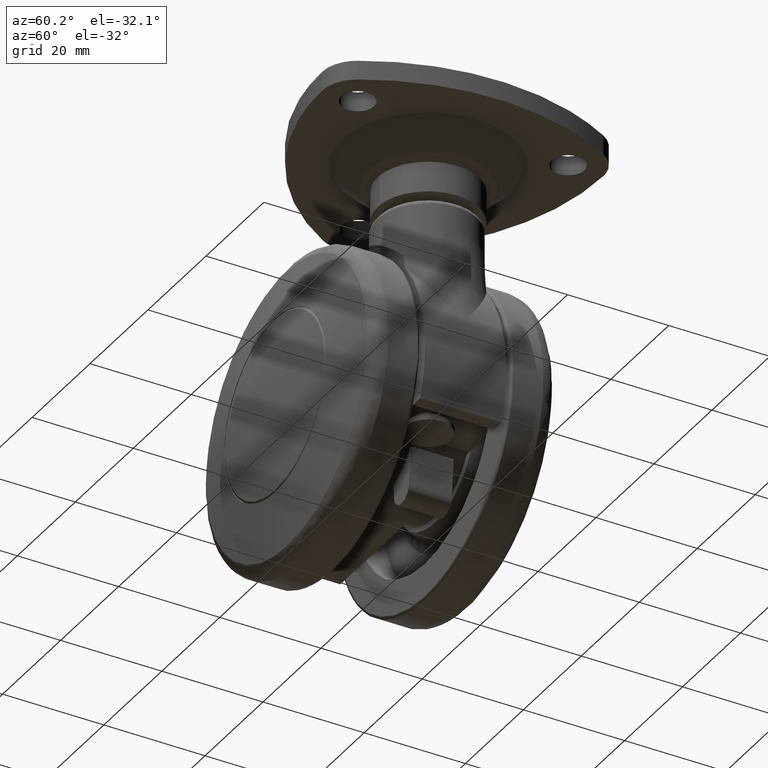
[diagram: clean part render]
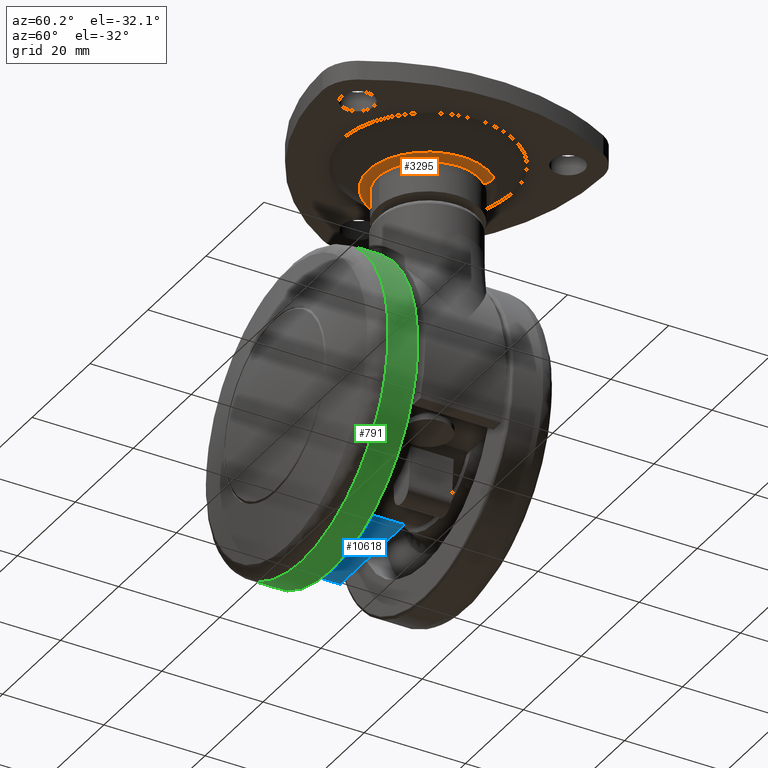
[diagram: same view with three faces highlighted in distinct colors, each labeled with its STEP entity id]
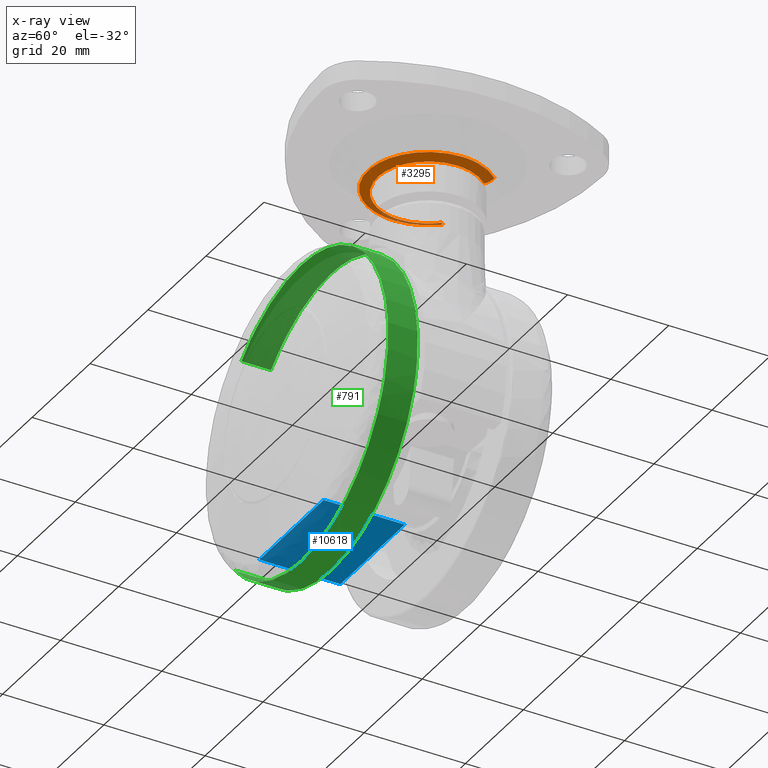
[diagram: x-ray of the same camera — body ghosted, the three highlighted faces saturated]
A machine part, auxiliary view with three faces highlighted in distinct colors.
The next image is the same camera in x-ray (body ghosted, the three faces saturated) — at least one of them is partly hidden behind the body in this view.
Their STEP definitions:

[orange] entity #3295 — the highlighted face is a freeform B-spline surface patch.
#2114=CARTESIAN_POINT('',(7.638564212240541,-3.516179743934661,40.204649041664908));
#2115=VERTEX_POINT('',#2114);
#2116=CARTESIAN_POINT('',(7.000000000000001,0.0,40.204649041664901));
#2117=VERTEX_POINT('',#2116);
#2118=CARTESIAN_POINT('',(7.638564212240541,-3.516179743934661,40.204649041664908));
#2119=CARTESIAN_POINT('',(7.000000000000001,-1.816073860688505,40.204649041664901));
#2120=CARTESIAN_POINT('',(7.000000000000001,0.0,40.204649041664901));
#2128=(BOUNDED_CURVE()B_SPLINE_CURVE(2,(#2118,#2119,#2120),.UNSPECIFIED.,.F.,.U.)B_SPLINE_CURVE_WITH_KNOTS((3,3),(0.940284170898270,1.0),.UNSPECIFIED.)CURVE()GEOMETRIC_REPRESENTATION_ITEM()RATIONAL_B_SPLINE_CURVE((0.893499554634984,0.930038554401121,1.0))REPRESENTATION_ITEM(''));
#2129=EDGE_CURVE('',#2115,#2117,#2128,.T.);
#2131=CARTESIAN_POINT('',(9.710313724783337,6.845471060255671,40.204649041742599));
#2132=VERTEX_POINT('',#2131);
#2133=CARTESIAN_POINT('',(7.000000000000001,0.0,40.204649041664901));
#2134=CARTESIAN_POINT('',(7.000000000000001,3.959280088000262,40.204649041664901));
#2135=CARTESIAN_POINT('',(9.710313724783337,6.845471060255671,40.204649041742599));
#2143=(BOUNDED_CURVE()B_SPLINE_CURVE(2,(#2133,#2134,#2135),.UNSPECIFIED.,.F.,.U.)B_SPLINE_CURVE_WITH_KNOTS((3,3),(0.0,0.120259312843455),.UNSPECIFIED.)CURVE()GEOMETRIC_REPRESENTATION_ITEM()RATIONAL_B_SPLINE_CURVE((1.0,0.859107451075946,0.853764031098849))REPRESENTATION_ITEM(''));
#2144=EDGE_CURVE('',#2117,#2132,#2143,.T.);
#2146=CARTESIAN_POINT('',(24.251180156752088,6.886246173968763,40.204649041760142));
#2147=VERTEX_POINT('',#2146);
#2163=CARTESIAN_POINT('',(27.0,0.0,40.204649041664901));
#2164=VERTEX_POINT('',#2163);
#2165=CARTESIAN_POINT('',(24.251180156752092,6.886246173968763,40.204649041760142));
#2166=CARTESIAN_POINT('',(27.000000000000007,3.991753671769552,40.204649041664901));
#2167=CARTESIAN_POINT('',(27.0,0.0,40.204649041664901));
#2175=(BOUNDED_CURVE()B_SPLINE_CURVE(2,(#2165,#2166,#2167),.UNSPECIFIED.,.F.,.U.)B_SPLINE_CURVE_WITH_KNOTS((3,3),(0.378894281371294,0.500000000000000),.UNSPECIFIED.)CURVE()GEOMETRIC_REPRESENTATION_ITEM()RATIONAL_B_SPLINE_CURVE((0.853695529820330,0.858115825016488,1.0))REPRESENTATION_ITEM(''));
#2176=EDGE_CURVE('',#2147,#2164,#2175,.T.);
#2178=CARTESIAN_POINT('',(17.610485395423328,-9.981347984214096,40.204649041664887));
#2179=VERTEX_POINT('',#2178);
#2180=CARTESIAN_POINT('',(27.0,0.0,40.204649041664901));
#2181=CARTESIAN_POINT('',(27.0,-9.407060668915710,40.204649041664894));
#2182=CARTESIAN_POINT('',(17.610485395423332,-9.981347984214096,40.204649041664901));
#2190=(BOUNDED_CURVE()B_SPLINE_CURVE(2,(#2180,#2181,#2182),.UNSPECIFIED.,.F.,.U.)B_SPLINE_CURVE_WITH_KNOTS((3,3),(0.500000000000000,0.739332962239383),.UNSPECIFIED.)CURVE()GEOMETRIC_REPRESENTATION_ITEM()RATIONAL_B_SPLINE_CURVE((1.0,0.719603993286195,0.976072041667660))REPRESENTATION_ITEM(''));
#2191=EDGE_CURVE('',#2164,#2179,#2190,.T.);
#2269=CARTESIAN_POINT('',(17.610485395423328,-9.981347984214096,40.204649041664887));
#2270=CARTESIAN_POINT('',(17.305527633060869,-10.0,40.204649041664901));
#2271=CARTESIAN_POINT('',(17.0,-10.0,40.204649041664901));
#2272=CARTESIAN_POINT('',(10.073904043085779,-10.0,40.204649041664901));
#2273=CARTESIAN_POINT('',(7.638564212240541,-3.516179743934661,40.204649041664908));
#2281=(BOUNDED_CURVE()B_SPLINE_CURVE(2,(#2269,#2270,#2271,#2272,#2273),.UNSPECIFIED.,.F.,.U.)B_SPLINE_CURVE_WITH_KNOTS((3,2,3),(0.739332962239383,0.750000000000000,0.940284170898269),.UNSPECIFIED.)CURVE()GEOMETRIC_REPRESENTATION_ITEM()RATIONAL_B_SPLINE_CURVE((0.976072041667662,0.987502787900353,1.0,0.777068226785427,0.893499554634982))REPRESENTATION_ITEM(''));
#2282=EDGE_CURVE('',#2179,#2115,#2281,.T.);
#2318=CARTESIAN_POINT('',(17.930542371726641,-11.823661890641310,40.988538000001967));
#2319=VERTEX_POINT('',#2318);
#2320=CARTESIAN_POINT('',(5.971600621723943,-4.363404263093949,40.988538000008312));
#2321=VERTEX_POINT('',#2320);
#2322=CARTESIAN_POINT('',(17.930542371726641,-11.823661890641311,40.988538000001967));
#2323=CARTESIAN_POINT('',(17.465989430820773,-11.860223000000099,40.988537999999991));
#2324=CARTESIAN_POINT('',(17.0,-11.860223000000101,40.988537999999998));
#2325=CARTESIAN_POINT('',(8.937729224356495,-11.860223000000103,40.988538000000013));
#2326=CARTESIAN_POINT('',(5.971600621723943,-4.363404263093949,40.988538000008305));
#2334=(BOUNDED_CURVE()B_SPLINE_CURVE(2,(#2322,#2323,#2324,#2325,#2326),.UNSPECIFIED.,.F.,.U.)B_SPLINE_CURVE_WITH_KNOTS((3,2,3),(0.736331300632307,0.750000000000000,0.937532549936850),.UNSPECIFIED.)CURVE()GEOMETRIC_REPRESENTATION_ITEM()RATIONAL_B_SPLINE_CURVE((0.969723356170855,0.983986122580812,1.0,0.780291951266806,0.890203187498297))REPRESENTATION_ITEM(''));
#2335=EDGE_CURVE('',#2319,#2321,#2334,.T.);
#2395=CARTESIAN_POINT('',(5.139776999999901,0.0,40.988537999999998));
#2396=VERTEX_POINT('',#2395);
#2397=CARTESIAN_POINT('',(5.971600621723943,-4.363404263093949,40.988538000008312));
#2398=CARTESIAN_POINT('',(5.139776999999901,-2.260990056339502,40.988537999999998));
#2399=CARTESIAN_POINT('',(5.139776999999901,0.0,40.988537999999998));
#2407=(BOUNDED_CURVE()B_SPLINE_CURVE(2,(#2397,#2398,#2399),.UNSPECIFIED.,.F.,.U.)B_SPLINE_CURVE_WITH_KNOTS((3,3),(0.937532549936850,1.0),.UNSPECIFIED.)CURVE()GEOMETRIC_REPRESENTATION_ITEM()RATIONAL_B_SPLINE_CURVE((0.890203187498297,0.926814829919741,1.0))REPRESENTATION_ITEM(''));
#2408=EDGE_CURVE('',#2321,#2396,#2407,.T.);
#2457=CARTESIAN_POINT('',(28.860223000000101,0.0,40.988537999999998));
#2458=VERTEX_POINT('',#2457);
#2459=CARTESIAN_POINT('',(28.860223000000101,0.0,40.988537999999998));
#2460=CARTESIAN_POINT('',(28.860223000000101,-10.963477370116529,40.988537999999998));
#2461=CARTESIAN_POINT('',(17.930542371726641,-11.823661890641308,40.988538000001967));
#2469=(BOUNDED_CURVE()B_SPLINE_CURVE(2,(#2459,#2460,#2461),.UNSPECIFIED.,.F.,.U.)B_SPLINE_CURVE_WITH_KNOTS((3,3),(0.500000000000000,0.736331300632306),.UNSPECIFIED.)CURVE()GEOMETRIC_REPRESENTATION_ITEM()RATIONAL_B_SPLINE_CURVE((1.0,0.723120658605736,0.969723356170854))REPRESENTATION_ITEM(''));
#2470=EDGE_CURVE('',#2458,#2319,#2469,.T.);
#2472=CARTESIAN_POINT('',(25.600061422658150,8.167241578233764,40.988537914071522));
#2473=VERTEX_POINT('',#2472);
#2474=CARTESIAN_POINT('',(25.600061422658143,8.167241578233764,40.988537914071522));
#2475=CARTESIAN_POINT('',(28.860223000000101,4.734308870803965,40.988537999999998));
#2476=CARTESIAN_POINT('',(28.860223000000101,0.0,40.988537999999998));
#2484=(BOUNDED_CURVE()B_SPLINE_CURVE(2,(#2474,#2475,#2476),.UNSPECIFIED.,.F.,.U.)B_SPLINE_CURVE_WITH_KNOTS((3,3),(0.378894281371769,0.500000000000000),.UNSPECIFIED.)CURVE()GEOMETRIC_REPRESENTATION_ITEM()RATIONAL_B_SPLINE_CURVE((0.853695529820365,0.858115825017045,1.0))REPRESENTATION_ITEM(''));
#2485=EDGE_CURVE('',#2473,#2458,#2484,.T.);
#2487=CARTESIAN_POINT('',(8.354269461824810,8.118881383818440,40.988537913782672));
#2488=VERTEX_POINT('',#2487);
#2504=CARTESIAN_POINT('',(5.139776999999901,0.0,40.988537999999998));
#2505=CARTESIAN_POINT('',(5.139776999999901,4.695794476301169,40.988537999999998));
#2506=CARTESIAN_POINT('',(8.354269461824810,8.118881383818440,40.988537913782672));
#2514=(BOUNDED_CURVE()B_SPLINE_CURVE(2,(#2504,#2505,#2506),.UNSPECIFIED.,.F.,.U.)B_SPLINE_CURVE_WITH_KNOTS((3,3),(0.0,0.120259312843166),.UNSPECIFIED.)CURVE()GEOMETRIC_REPRESENTATION_ITEM()RATIONAL_B_SPLINE_CURVE((1.0,0.859107451076285,0.853764031098874))REPRESENTATION_ITEM(''));
#2515=EDGE_CURVE('',#2396,#2488,#2514,.T.);
#3228=CARTESIAN_POINT('',(25.652992419052946,8.217508688341217,41.057738575799434));
#3229=CARTESIAN_POINT('',(33.413225016302476,0.046025531973226,41.057738575799441));
#3230=CARTESIAN_POINT('',(25.698942615564121,-8.168850850534211,41.057738575799448));
#3231=CARTESIAN_POINT('',(17.530091765029919,-16.867793466098338,41.057738575799441));
#3232=CARTESIAN_POINT('',(8.831149149465789,-8.698942615564125,41.057738575799448));
#3233=CARTESIAN_POINT('',(0.132206533901666,-0.530091765029907,41.057738575799441));
#3234=CARTESIAN_POINT('',(8.301057384435872,8.168850850534206,41.057738575799448));
#3235=CARTESIAN_POINT('',(25.038584957605263,7.634022836497539,40.227066013923313));
#3236=CARTESIAN_POINT('',(32.247800683532795,0.042757479848370,40.227066013923320));
#3237=CARTESIAN_POINT('',(25.081272451201180,-7.588819958218837,40.227066013923313));
#3238=CARTESIAN_POINT('',(17.492452492982345,-15.670092409420009,40.227066013923313));
#3239=CARTESIAN_POINT('',(9.411180041781163,-8.081272451201174,40.227066013923313));
#3240=CARTESIAN_POINT('',(1.329907590579991,-0.492452492982331,40.227066013923313));
#3241=CARTESIAN_POINT('',(8.918727548798824,7.588819958218832,40.227066013923313));
#3242=CARTESIAN_POINT('',(24.178387129710739,6.817116640110374,40.200738533452089));
#3243=CARTESIAN_POINT('',(30.616154679003785,0.038182061228577,40.200738533452054));
#3244=CARTESIAN_POINT('',(24.216506693818669,-6.776750859146061,40.200738533452075));
#3245=CARTESIAN_POINT('',(17.439755834672614,-13.993257552964732,40.200738533452075));
#3246=CARTESIAN_POINT('',(10.223249140853941,-7.216506693818668,40.200738533452075));
#3247=CARTESIAN_POINT('',(3.006742447035273,-0.439755834672603,40.200738533452075));
#3248=CARTESIAN_POINT('',(9.783493306181329,6.776750859146056,40.200738533452075));
#3256=(BOUNDED_SURFACE()B_SPLINE_SURFACE(2,2,((#3228,#3235,#3242),(#3229,#3236,#3243),(#3230,#3237,#3244),(#3231,#3238,#3245),(#3232,#3239,#3246),(#3233,#3240,#3247),(#3234,#3241,#3248)),.UNSPECIFIED.,.F.,.F.,.U.)B_SPLINE_SURFACE_WITH_KNOTS((3,2,2,3),(3,3),(0.0,18.980741168634079,38.752346552627913,58.523951936621742),(0.0,2.286962284233530),.UNSPECIFIED.)GEOMETRIC_REPRESENTATION_ITEM()RATIONAL_B_SPLINE_SURFACE(((0.913260034985380,0.849777174927549,0.914406192023212),(0.671578490931980,0.624895485298905,0.672421333478846),(0.934275821424806,0.869332104460474,0.935448353635766),(0.660632768828113,0.614710626167173,0.661461874305641),(0.934275821424806,0.869332104460474,0.935448353635766),(0.660632768828113,0.614710626167173,0.661461874305641),(0.934275821424806,0.869332104460474,0.935448353635766)))REPRESENTATION_ITEM('')SURFACE());
#3257=ORIENTED_EDGE('',*,*,#2176,.F.);
#3258=CARTESIAN_POINT('',(25.600061422658147,8.167241578233764,40.988537914071522));
#3259=CARTESIAN_POINT('',(25.027158257859895,7.623171214320005,40.264295146737972));
#3260=CARTESIAN_POINT('',(24.251180156752095,6.886246173968763,40.204649041760142));
#3268=(BOUNDED_CURVE()B_SPLINE_CURVE(2,(#3258,#3259,#3260),.UNSPECIFIED.,.F.,.U.)B_SPLINE_CURVE_WITH_KNOTS((3,3),(-1.520779170973018,-0.468869925242491),.UNSPECIFIED.)CURVE()GEOMETRIC_REPRESENTATION_ITEM()RATIONAL_B_SPLINE_CURVE((0.907758341441582,0.855330928358421,0.908800378333110))REPRESENTATION_ITEM(''));
#3269=EDGE_CURVE('',#2473,#2147,#3268,.T.);
#3270=ORIENTED_EDGE('',*,*,#3269,.F.);
#3271=ORIENTED_EDGE('',*,*,#2485,.T.);
#3272=ORIENTED_EDGE('',*,*,#2470,.T.);
#3273=ORIENTED_EDGE('',*,*,#2335,.T.);
#3274=ORIENTED_EDGE('',*,*,#2408,.T.);
#3275=ORIENTED_EDGE('',*,*,#2515,.T.);
#3276=CARTESIAN_POINT('',(8.354269461824810,8.118881383818440,40.988537913782672));
#3277=CARTESIAN_POINT('',(8.930214928568162,7.578032590587375,40.264295146470950));
#3278=CARTESIAN_POINT('',(9.710313724783337,6.845471060255672,40.204649041742599));
#3286=(BOUNDED_CURVE()B_SPLINE_CURVE(2,(#3276,#3277,#3278),.UNSPECIFIED.,.F.,.U.)B_SPLINE_CURVE_WITH_KNOTS((3,3),(-1.520779170527773,-0.468869924913784),.UNSPECIFIED.)CURVE()GEOMETRIC_REPRESENTATION_ITEM()RATIONAL_B_SPLINE_CURVE((0.928647523788408,0.875013659938308,0.929713539937346))REPRESENTATION_ITEM(''));
#3287=EDGE_CURVE('',#2488,#2132,#3286,.T.);
#3288=ORIENTED_EDGE('',*,*,#3287,.T.);
#3289=ORIENTED_EDGE('',*,*,#2144,.F.);
#3290=ORIENTED_EDGE('',*,*,#2129,.F.);
#3291=ORIENTED_EDGE('',*,*,#2282,.F.);
#3292=ORIENTED_EDGE('',*,*,#2191,.F.);
#3293=EDGE_LOOP('',(#3257,#3270,#3271,#3272,#3273,#3274,#3275,#3288,#3289,#3290,#3291,#3292));
#3294=FACE_OUTER_BOUND('',#3293,.T.);
#3295=ADVANCED_FACE('',(#3294),#3256,.T.);

[blue] entity #10618 — the highlighted face is a freeform B-spline surface patch.
#10583=CARTESIAN_POINT('',(-3.991490235173391,-8.799199968988885,-12.500000000000000));
#10584=CARTESIAN_POINT('',(-28.379308573809048,-8.799199968988885,-12.500000000000000));
#10585=CARTESIAN_POINT('',(-3.991490235173391,8.799200398142116,-12.500000000000000));
#10586=CARTESIAN_POINT('',(-28.379308573809048,8.799200398142116,-12.500000000000000));
#10587=B_SPLINE_SURFACE_WITH_KNOTS('',1,1,((#10583,#10585),(#10584,#10586)),.UNSPECIFIED.,.F.,.F.,.U.,(2,2),(2,2),(0.0,24.387818338635650),(0.0,17.598400367130999),.UNSPECIFIED.);
#10588=CARTESIAN_POINT('',(-27.271780286589308,7.999999999999789,-12.500000000000000));
#10589=VERTEX_POINT('',#10588);
#10590=CARTESIAN_POINT('',(-5.099019513592780,7.999999999999789,-12.500000000000000));
#10591=VERTEX_POINT('',#10590);
#10592=CARTESIAN_POINT('',(-27.271780286589308,7.999999999999789,-12.500000000000000));
#10593=CARTESIAN_POINT('',(-5.099019513592780,7.999999999999789,-12.500000000000000));
#10594=QUASI_UNIFORM_CURVE('',1,(#10592,#10593),.UNSPECIFIED.,.F.,.U.);
#10595=EDGE_CURVE('',#10589,#10591,#10594,.T.);
#10596=ORIENTED_EDGE('',*,*,#10595,.T.);
#10597=CARTESIAN_POINT('',(-5.099019513592780,-8.0,-12.500000000000000));
#10598=VERTEX_POINT('',#10597);
#10599=CARTESIAN_POINT('',(-5.099019513592780,7.999999999999789,-12.500000000000000));
#10600=CARTESIAN_POINT('',(-5.099019513592780,-8.0,-12.500000000000000));
#10601=QUASI_UNIFORM_CURVE('',1,(#10599,#10600),.UNSPECIFIED.,.F.,.U.);
#10602=EDGE_CURVE('',#10591,#10598,#10601,.T.);
#10603=ORIENTED_EDGE('',*,*,#10602,.T.);
#10604=CARTESIAN_POINT('',(-27.271780286589308,-8.0,-12.500000000000000));
#10605=VERTEX_POINT('',#10604);
#10606=CARTESIAN_POINT('',(-5.099019513592780,-8.0,-12.500000000000000));
#10607=CARTESIAN_POINT('',(-27.271780286589308,-8.0,-12.500000000000000));
#10608=QUASI_UNIFORM_CURVE('',1,(#10606,#10607),.UNSPECIFIED.,.F.,.U.);
#10609=EDGE_CURVE('',#10598,#10605,#10608,.T.);
#10610=ORIENTED_EDGE('',*,*,#10609,.T.);
#10611=CARTESIAN_POINT('',(-27.271780286589308,7.999999999999789,-12.500000000000000));
#10612=CARTESIAN_POINT('',(-27.271780286589308,-8.0,-12.500000000000000));
#10613=QUASI_UNIFORM_CURVE('',1,(#10611,#10612),.UNSPECIFIED.,.F.,.U.);
#10614=EDGE_CURVE('',#10589,#10605,#10613,.T.);
#10615=ORIENTED_EDGE('',*,*,#10614,.F.);
#10616=EDGE_LOOP('',(#10596,#10603,#10610,#10615));
#10617=FACE_OUTER_BOUND('',#10616,.T.);
#10618=ADVANCED_FACE('',(#10617),#10587,.T.);

[green] entity #791 — the highlighted face is a freeform B-spline surface patch.
#610=CARTESIAN_POINT('',(-22.906669288213937,-9.354391847586479,-19.372261151460755));
#611=CARTESIAN_POINT('',(-22.352243496945437,-9.354391847586477,-20.027840185118695));
#612=CARTESIAN_POINT('',(-21.761231130368621,-9.354391847586479,-20.650637270812609));
#613=CARTESIAN_POINT('',(-1.110593859556008,-9.354391847586479,-42.411868401181231));
#614=CARTESIAN_POINT('',(20.650637270812609,-9.354391847586479,-21.761231130368621));
#615=CARTESIAN_POINT('',(42.411868401181231,-9.354391847586479,-1.110593859556008));
#616=CARTESIAN_POINT('',(21.761231130368621,-9.354391847586479,20.650637270812609));
#617=CARTESIAN_POINT('',(1.110593859556008,-9.354391847586479,42.411868401181231));
#618=CARTESIAN_POINT('',(-20.650637270812609,-9.354391847586479,21.761231130368621));
#619=CARTESIAN_POINT('',(-22.906669288213937,-15.473574354201560,-19.372261151460755));
#620=CARTESIAN_POINT('',(-22.352243496945437,-15.473574354201556,-20.027840185118695));
#621=CARTESIAN_POINT('',(-21.761231130368621,-15.473574354201549,-20.650637270812609));
#622=CARTESIAN_POINT('',(-1.110593859556008,-15.473574354201551,-42.411868401181231));
#623=CARTESIAN_POINT('',(20.650637270812609,-15.473574354201549,-21.761231130368621));
#624=CARTESIAN_POINT('',(42.411868401181231,-15.473574354201551,-1.110593859556008));
#625=CARTESIAN_POINT('',(21.761231130368621,-15.473574354201549,20.650637270812609));
#626=CARTESIAN_POINT('',(1.110593859556008,-15.473574354201551,42.411868401181231));
#627=CARTESIAN_POINT('',(-20.650637270812609,-15.473574354201549,21.761231130368621));
#635=(BOUNDED_SURFACE()B_SPLINE_SURFACE(2,1,((#610,#619),(#611,#620),(#612,#621),(#613,#622),(#614,#623),(#615,#624),(#616,#625),(#617,#626),(#618,#627)),.UNSPECIFIED.,.F.,.F.,.U.)B_SPLINE_SURFACE_WITH_KNOTS((3,2,2,2,3),(2,2),(0.0,1.988225099390859,51.693852584162251,101.399480068933600,151.105107553705010),(0.0,6.119182506615077),.UNSPECIFIED.)GEOMETRIC_REPRESENTATION_ITEM()RATIONAL_B_SPLINE_SURFACE(((0.977505800795127,0.977505800795127),(0.988284271247462,0.988284271247462),(1.0,1.0),(0.707106781186548,0.707106781186548),(1.0,1.0),(0.707106781186548,0.707106781186548),(1.0,1.0),(0.707106781186548,0.707106781186548),(1.0,1.0)))REPRESENTATION_ITEM('')SURFACE());
#636=CARTESIAN_POINT('',(-22.906671619094951,-15.324326000000170,-19.372258395317161));
#637=VERTEX_POINT('',#636);
#638=CARTESIAN_POINT('',(0.0,-15.324326000000100,-30.0));
#639=VERTEX_POINT('',#638);
#640=CARTESIAN_POINT('',(-22.906671619094947,-15.324326000000170,-19.372258395317161));
#641=CARTESIAN_POINT('',(-13.918750547534831,-15.324326000000102,-30.000000000000004));
#642=CARTESIAN_POINT('',(0.0,-15.324326000000100,-30.0));
#650=(BOUNDED_CURVE()B_SPLINE_CURVE(2,(#640,#641,#642),.UNSPECIFIED.,.F.,.U.)B_SPLINE_CURVE_WITH_KNOTS((3,3),(0.862408071537159,1.0),.UNSPECIFIED.)CURVE()GEOMETRIC_REPRESENTATION_ITEM()RATIONAL_B_SPLINE_CURVE((0.855039476072267,0.838801028759073,1.0))REPRESENTATION_ITEM(''));
#651=EDGE_CURVE('',#637,#639,#650,.T.);
#652=ORIENTED_EDGE('',*,*,#651,.F.);
#653=CARTESIAN_POINT('',(-22.906671590334390,-9.499999999169138,-19.372258429325019));
#654=VERTEX_POINT('',#653);
#655=CARTESIAN_POINT('',(-22.906671590334390,-9.499999999169138,-19.372258429325019));
#656=CARTESIAN_POINT('',(-22.906671619094951,-15.324326000000170,-19.372258395317161));
#657=QUASI_UNIFORM_CURVE('',1,(#655,#656),.UNSPECIFIED.,.F.,.U.);
#658=EDGE_CURVE('',#654,#637,#657,.T.);
#659=ORIENTED_EDGE('',*,*,#658,.F.);
#660=CARTESIAN_POINT('',(0.0,-9.500000000000000,-30.0));
#661=VERTEX_POINT('',#660);
#662=CARTESIAN_POINT('',(-22.906671590334390,-9.499999999169138,-19.372258429325019));
#663=CARTESIAN_POINT('',(-13.918750520471786,-9.500000000000000,-29.999999999999993));
#664=CARTESIAN_POINT('',(0.0,-9.500000000000000,-30.0));
#672=(BOUNDED_CURVE()B_SPLINE_CURVE(2,(#662,#663,#664),.UNSPECIFIED.,.F.,.U.)B_SPLINE_CURVE_WITH_KNOTS((3,3),(0.862408071761562,1.0),.UNSPECIFIED.)CURVE()GEOMETRIC_REPRESENTATION_ITEM()RATIONAL_B_SPLINE_CURVE((0.855039476019300,0.838801029021977,1.0))REPRESENTATION_ITEM(''));
#673=EDGE_CURVE('',#654,#661,#672,.T.);
#674=ORIENTED_EDGE('',*,*,#673,.T.);
#675=CARTESIAN_POINT('',(29.799349163548900,-9.499999997687951,-3.463926879842759));
#676=VERTEX_POINT('',#675);
#677=CARTESIAN_POINT('',(0.0,-9.500000000000000,-30.0));
#678=CARTESIAN_POINT('',(26.714751024753177,-9.500000000000000,-30.000000000000004));
#679=CARTESIAN_POINT('',(29.799349163548897,-9.499999997687951,-3.463926879842759));
#687=(BOUNDED_CURVE()B_SPLINE_CURVE(2,(#677,#678,#679),.UNSPECIFIED.,.F.,.U.)B_SPLINE_CURVE_WITH_KNOTS((3,3),(0.0,0.229999999999653),.UNSPECIFIED.)CURVE()GEOMETRIC_REPRESENTATION_ITEM()RATIONAL_B_SPLINE_CURVE((1.0,0.730538238692030,0.956886118189977))REPRESENTATION_ITEM(''));
#688=EDGE_CURVE('',#661,#676,#687,.T.);
#689=ORIENTED_EDGE('',*,*,#688,.T.);
#690=CARTESIAN_POINT('',(0.0,-9.500000000000000,30.0));
#691=VERTEX_POINT('',#690);
#692=CARTESIAN_POINT('',(29.799349163548897,-9.499999997687951,-3.463926879842759));
#693=CARTESIAN_POINT('',(30.000000000000004,-9.500000000000000,-1.737774872967162));
#694=CARTESIAN_POINT('',(30.0,-9.500000000000000,-1.653219E-015));
#695=CARTESIAN_POINT('',(29.999999999999993,-9.500000000000000,29.999999999999993));
#696=CARTESIAN_POINT('',(0.0,-9.500000000000000,30.0));
#704=(BOUNDED_CURVE()B_SPLINE_CURVE(2,(#692,#693,#694,#695,#696),.UNSPECIFIED.,.F.,.U.)B_SPLINE_CURVE_WITH_KNOTS((3,2,3),(0.229999999999653,0.250000000000000,0.500000000000000),.UNSPECIFIED.)CURVE()GEOMETRIC_REPRESENTATION_ITEM()RATIONAL_B_SPLINE_CURVE((0.956886118189977,0.976568542494518,1.0,0.707106781186547,1.0))REPRESENTATION_ITEM(''));
#705=EDGE_CURVE('',#676,#691,#704,.T.);
#706=ORIENTED_EDGE('',*,*,#705,.T.);
#707=CARTESIAN_POINT('',(-20.650636376520431,-9.499999999355886,21.761231979020138));
#708=VERTEX_POINT('',#707);
#709=CARTESIAN_POINT('',(0.0,-9.500000000000000,30.0));
#710=CARTESIAN_POINT('',(-11.968785664659526,-9.500000000000000,30.0));
#711=CARTESIAN_POINT('',(-20.650636376520438,-9.499999999355905,21.761231979020149));
#719=(BOUNDED_CURVE()B_SPLINE_CURVE(2,(#709,#710,#711),.UNSPECIFIED.,.F.,.U.)B_SPLINE_CURVE_WITH_KNOTS((3,3),(0.500000000000000,0.621049520457156),.UNSPECIFIED.)CURVE()GEOMETRIC_REPRESENTATION_ITEM()RATIONAL_B_SPLINE_CURVE((1.0,0.858181665269914,0.853699661828703))REPRESENTATION_ITEM(''));
#720=EDGE_CURVE('',#691,#708,#719,.T.);
#721=ORIENTED_EDGE('',*,*,#720,.T.);
#722=CARTESIAN_POINT('',(-20.650636387295179,-15.324326000000100,21.761231968795290));
#723=VERTEX_POINT('',#722);
#724=CARTESIAN_POINT('',(-20.650636376520431,-9.499999999355886,21.761231979020138));
#725=CARTESIAN_POINT('',(-20.650636387295179,-15.324326000000100,21.761231968795290));
#726=QUASI_UNIFORM_CURVE('',1,(#724,#725),.UNSPECIFIED.,.F.,.U.);
#727=EDGE_CURVE('',#708,#723,#726,.T.);
#728=ORIENTED_EDGE('',*,*,#727,.T.);
#729=CARTESIAN_POINT('',(0.0,-15.324326000000100,30.0));
#730=VERTEX_POINT('',#729);
#731=CARTESIAN_POINT('',(0.0,-15.324326000000100,30.0));
#732=CARTESIAN_POINT('',(-11.968785673268712,-15.324326000000100,30.0));
#733=CARTESIAN_POINT('',(-20.650636387295194,-15.324326000000100,21.761231968795311));
#741=(BOUNDED_CURVE()B_SPLINE_CURVE(2,(#731,#732,#733),.UNSPECIFIED.,.F.,.U.)B_SPLINE_CURVE_WITH_KNOTS((3,3),(0.500000000000000,0.621049520531879),.UNSPECIFIED.)CURVE()GEOMETRIC_REPRESENTATION_ITEM()RATIONAL_B_SPLINE_CURVE((1.0,0.858181665182371,0.853699661823170))REPRESENTATION_ITEM(''));
#742=EDGE_CURVE('',#730,#723,#741,.T.);
#743=ORIENTED_EDGE('',*,*,#742,.F.);
#744=CARTESIAN_POINT('',(13.438276018699520,-15.324326000381671,26.821870509814278));
#745=VERTEX_POINT('',#744);
#746=CARTESIAN_POINT('',(13.438276018699520,-15.324326000381671,26.821870509814278));
#747=CARTESIAN_POINT('',(7.094949126876906,-15.324326000000100,30.0));
#748=CARTESIAN_POINT('',(0.0,-15.324326000000100,30.0));
#756=(BOUNDED_CURVE()B_SPLINE_CURVE(2,(#746,#747,#748),.UNSPECIFIED.,.F.,.U.)B_SPLINE_CURVE_WITH_KNOTS((3,3),(0.423845389614840,0.500000000000000),.UNSPECIFIED.)CURVE()GEOMETRIC_REPRESENTATION_ITEM()RATIONAL_B_SPLINE_CURVE((0.875915174757399,0.910779324147225,1.0))REPRESENTATION_ITEM(''));
#757=EDGE_CURVE('',#745,#730,#756,.T.);
#758=ORIENTED_EDGE('',*,*,#757,.F.);
#759=CARTESIAN_POINT('',(28.755653670517631,-15.324326000381060,-8.550577874111538));
#760=VERTEX_POINT('',#759);
#761=CARTESIAN_POINT('',(28.755653670517628,-15.324326000381065,-8.550577874111538));
#762=CARTESIAN_POINT('',(30.0,-15.324326000000097,-4.365832395673695));
#763=CARTESIAN_POINT('',(30.0,-15.324326000000100,-1.653219E-015));
#764=CARTESIAN_POINT('',(30.000000000000007,-15.324326000000104,18.524126393687993));
#765=CARTESIAN_POINT('',(13.438276018699517,-15.324326000381676,26.821870509814282));
#773=(BOUNDED_CURVE()B_SPLINE_CURVE(2,(#761,#762,#763,#764,#765),.UNSPECIFIED.,.F.,.U.)B_SPLINE_CURVE_WITH_KNOTS((3,2,3),(0.201473337935373,0.250000000000000,0.423845389614841),.UNSPECIFIED.)CURVE()GEOMETRIC_REPRESENTATION_ITEM()RATIONAL_B_SPLINE_CURVE((0.908365862590254,0.943147478998475,1.0,0.796327457039322,0.875915174757400))REPRESENTATION_ITEM(''));
#774=EDGE_CURVE('',#760,#745,#773,.T.);
#775=ORIENTED_EDGE('',*,*,#774,.F.);
#776=CARTESIAN_POINT('',(0.0,-15.324326000000100,-30.0));
#777=CARTESIAN_POINT('',(22.377605153734077,-15.324326000000102,-29.999999999999993));
#778=CARTESIAN_POINT('',(28.755653670517628,-15.324326000381065,-8.550577874111538));
#786=(BOUNDED_CURVE()B_SPLINE_CURVE(2,(#776,#777,#778),.UNSPECIFIED.,.F.,.U.)B_SPLINE_CURVE_WITH_KNOTS((3,3),(0.0,0.201473337935373),.UNSPECIFIED.)CURVE()GEOMETRIC_REPRESENTATION_ITEM()RATIONAL_B_SPLINE_CURVE((1.0,0.763959302188073,0.908365862590254))REPRESENTATION_ITEM(''));
#787=EDGE_CURVE('',#639,#760,#786,.T.);
#788=ORIENTED_EDGE('',*,*,#787,.F.);
#789=EDGE_LOOP('',(#652,#659,#674,#689,#706,#721,#728,#743,#758,#775,#788));
#790=FACE_OUTER_BOUND('',#789,.T.);
#791=ADVANCED_FACE('',(#790),#635,.T.);